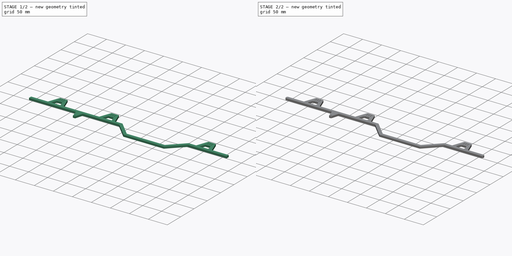
[diagram: build sequence overview — one tinted view per stage of 2, left to right]
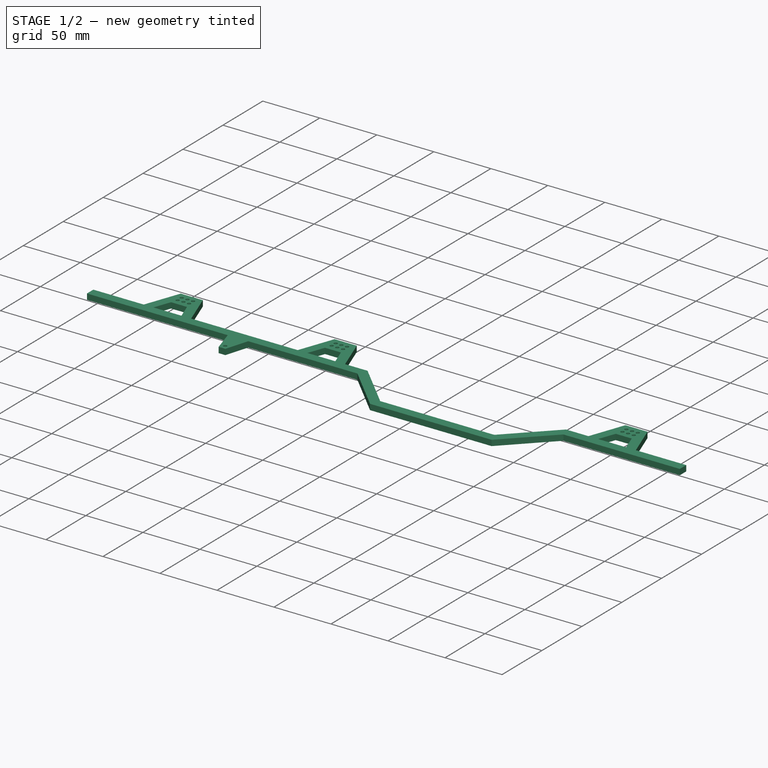
[diagram: stage 1 of 2 — iso view after this stage's code; geometry added in this stage tinted green]
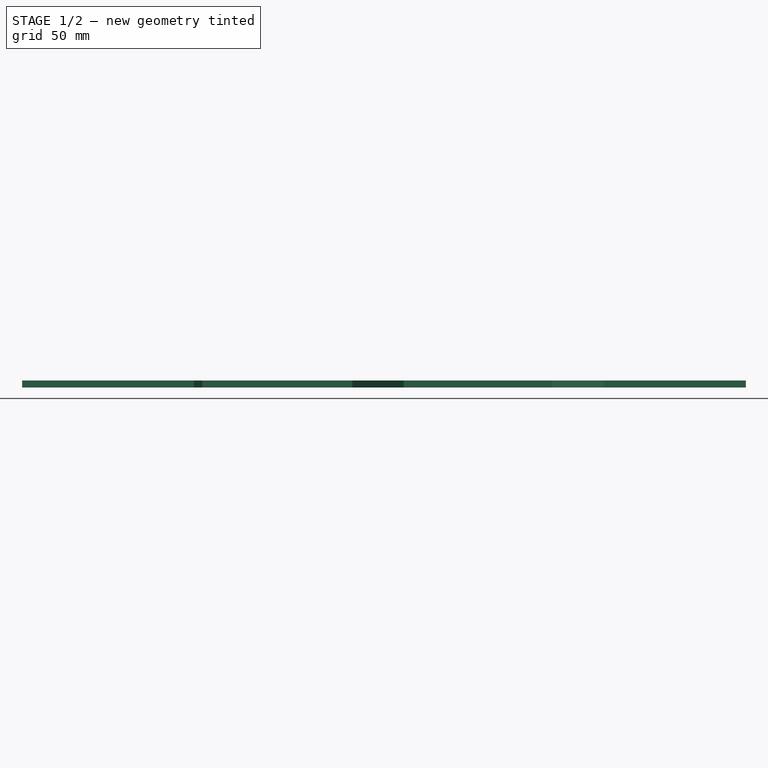
[diagram: stage 1 of 2 — front view after this stage's code; geometry added in this stage tinted green]
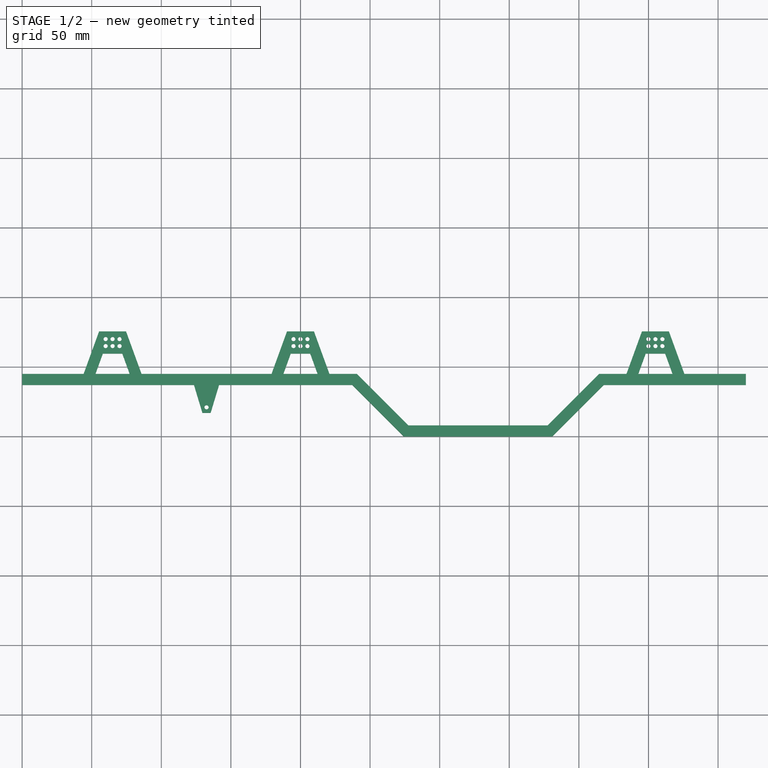
[diagram: stage 1 of 2 — top view after this stage's code; geometry added in this stage tinted green]
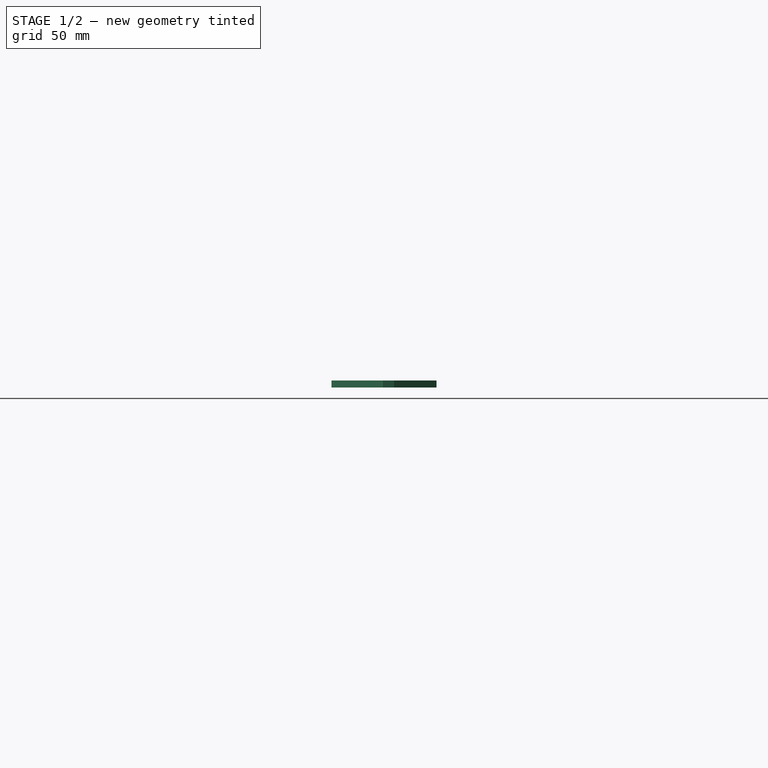
[diagram: stage 1 of 2 — right view after this stage's code; geometry added in this stage tinted green]
FCSTD DOCUMENT  (FreeCAD 0.16R6692 (Git))
Label: chassis
License: All rights reserved
LicenseURL: http://en.wikipedia.org/wiki/All_rights_reserved
objects: Sketcher::SketchObject×1, PartDesign::Pad×1, Part::Fillet×1
note: 4 computed .brp shape members not serialized (recipe doc carries the construction recipe); baked Part::Feature solids carry a one-line shape summary decoded from their .brp

FEATURE [Sketcher::SketchObject] Sketch
  sketch-geometry (104):
    g0: LineSegment StartX=0 StartY=45 StartZ=0 EndX=44.209 EndY=45 EndZ=0
    g1: LineSegment StartX=44.209 StartY=45 StartZ=0 EndX=55.3101 EndY=75.5 EndZ=0
    g2: LineSegment StartX=55.3101 StartY=75.5 StartZ=0 EndX=74.6899 EndY=75.5 EndZ=0
    g3: LineSegment StartX=74.6899 StartY=75.5 StartZ=0 EndX=85.791 EndY=45 EndZ=0
    g4: LineSegment StartX=85.791 StartY=45 StartZ=0 EndX=179.209 EndY=45 EndZ=0
    g5: LineSegment StartX=179.209 StartY=45 StartZ=0 EndX=190.31 EndY=75.5 EndZ=0
    g6: LineSegment StartX=190.31 StartY=75.5 StartZ=0 EndX=209.69 EndY=75.5 EndZ=0
    g7: LineSegment StartX=209.69 StartY=75.5 StartZ=0 EndX=220.791 EndY=45 EndZ=0
    g8: LineSegment StartX=220.791 StartY=45 StartZ=0 EndX=240.5 EndY=45 EndZ=0
    g9: LineSegment StartX=240.5 StartY=45 StartZ=0 EndX=277.5 EndY=8 EndZ=0
    g10: LineSegment StartX=277.5 StartY=8 StartZ=0 EndX=377.5 EndY=8 EndZ=0
    g11: LineSegment StartX=377.5 StartY=8 StartZ=0 EndX=414.5 EndY=45 EndZ=0
    g12: LineSegment StartX=414.5 StartY=45 StartZ=0 EndX=434.209 EndY=45 EndZ=0
    g13: LineSegment StartX=434.209 StartY=45 StartZ=0 EndX=445.31 EndY=75.5 EndZ=0
    g14: LineSegment StartX=445.31 StartY=75.5 StartZ=0 EndX=464.69 EndY=75.5 EndZ=0
    g15: LineSegment StartX=464.69 StartY=75.5 StartZ=0 EndX=475.791 EndY=45 EndZ=0
    g16: LineSegment StartX=475.791 StartY=45 StartZ=0 EndX=520 EndY=45 EndZ=0
    g17: LineSegment StartX=520 StartY=45 StartZ=0 EndX=520 EndY=37 EndZ=0
    g18: LineSegment StartX=520 StartY=37 StartZ=0 EndX=417.814 EndY=37 EndZ=0
    g19: LineSegment StartX=417.814 StartY=37 StartZ=0 EndX=380.814 EndY=0 EndZ=0
    g20: LineSegment StartX=380.814 StartY=0 StartZ=0 EndX=274.186 EndY=0 EndZ=0
    g21: LineSegment StartX=274.186 StartY=0 StartZ=0 EndX=237.186 EndY=37 EndZ=0
    g22: LineSegment StartX=237.186 StartY=37 StartZ=0 EndX=141.5 EndY=37 EndZ=0
    g23: LineSegment StartX=141.5 StartY=37 StartZ=0 EndX=135.472 EndY=17 EndZ=0
    g24: LineSegment StartX=135.472 StartY=17 StartZ=0 EndX=129.528 EndY=17 EndZ=0
    g25: LineSegment StartX=129.528 StartY=17 StartZ=0 EndX=123.5 EndY=37 EndZ=0
    g26: LineSegment StartX=123.5 StartY=37 StartZ=0 EndX=0 EndY=37 EndZ=0
    g27: LineSegment StartX=0 StartY=37 StartZ=0 EndX=0 EndY=45 EndZ=0
    g28: LineSegment [constr] StartX=240.5 StartY=45 StartZ=0 EndX=414.5 EndY=45 EndZ=0
    g29: LineSegment [constr] StartX=237.186 StartY=37 StartZ=0 EndX=417.814 EndY=37 EndZ=0
    g30: LineSegment [constr] StartX=123.5 StartY=37 StartZ=0 EndX=141.5 EndY=37 EndZ=0
    g31: LineSegment StartX=52.7224 StartY=45 StartZ=0 EndX=58 EndY=59.5 EndZ=0
    g32: LineSegment StartX=58 StartY=59.5 StartZ=0 EndX=72 EndY=59.5 EndZ=0
    g33: LineSegment StartX=72 StartY=59.5 StartZ=0 EndX=77.2776 EndY=45 EndZ=0
    g34: LineSegment StartX=77.2776 StartY=45 StartZ=0 EndX=52.7224 EndY=45 EndZ=0
    g35: LineSegment StartX=187.722 StartY=45 StartZ=0 EndX=193 EndY=59.5 EndZ=0
    g36: LineSegment StartX=193 StartY=59.5 StartZ=0 EndX=207 EndY=59.5 EndZ=0
    g37: LineSegment StartX=207 StartY=59.5 StartZ=0 EndX=212.278 EndY=45 EndZ=0
    g38: LineSegment StartX=212.278 StartY=45 StartZ=0 EndX=187.722 EndY=45 EndZ=0
    g39: LineSegment StartX=442.722 StartY=45 StartZ=0 EndX=448 EndY=59.5 EndZ=0
    g40: LineSegment StartX=448 StartY=59.5 StartZ=0 EndX=462 EndY=59.5 EndZ=0
    g41: LineSegment StartX=462 StartY=59.5 StartZ=0 EndX=467.278 EndY=45 EndZ=0
    g42: LineSegment StartX=467.278 StartY=45 StartZ=0 EndX=442.722 EndY=45 EndZ=0
    g43: LineSegment [constr] StartX=44.209 StartY=45 StartZ=0 EndX=52.7224 EndY=45 EndZ=0
    g44: LineSegment [constr] StartX=77.2776 StartY=45 StartZ=0 EndX=85.791 EndY=45 EndZ=0
    g45: LineSegment [constr] StartX=179.209 StartY=45 StartZ=0 EndX=187.722 EndY=45 EndZ=0
    g46: LineSegment [constr] StartX=212.278 StartY=45 StartZ=0 EndX=220.791 EndY=45 EndZ=0
    g47: LineSegment [constr] StartX=434.209 StartY=45 StartZ=0 EndX=442.722 EndY=45 EndZ=0
    g48: LineSegment [constr] StartX=467.278 StartY=45 StartZ=0 EndX=475.791 EndY=45 EndZ=0
    g49: LineSegment [constr] StartX=377.5 StartY=8 StartZ=0 EndX=377.5 EndY=0 EndZ=0
    g50: LineSegment [constr] StartX=277.5 StartY=8 StartZ=0 EndX=271.843 EndY=2.34315 EndZ=0
    g51: LineSegment [constr] StartX=377.5 StartY=8 StartZ=0 EndX=383.157 EndY=2.34315 EndZ=0
    g52: Circle CenterX=60 CenterY=70 CenterZ=0 NormalX=0 NormalY=0 NormalZ=1 Radius=1.5
    g53: Circle CenterX=65 CenterY=70 CenterZ=0 NormalX=0 NormalY=0 NormalZ=1 Radius=1.5
    g54: Circle CenterX=70 CenterY=70 CenterZ=0 NormalX=0 NormalY=0 NormalZ=1 Radius=1.5
    g55: Circle CenterX=60 CenterY=65 CenterZ=0 NormalX=0 NormalY=0 NormalZ=1 Radius=1.5
    g56: Circle CenterX=65 CenterY=65 CenterZ=0 NormalX=0 NormalY=0 NormalZ=1 Radius=1.5
    g57: Circle CenterX=70 CenterY=65 CenterZ=0 NormalX=0 NormalY=0 NormalZ=1 Radius=1.5
    g58: LineSegment [constr] StartX=60 StartY=70 StartZ=0 EndX=65 EndY=70 EndZ=0
    g59: LineSegment [constr] StartX=65 StartY=70 StartZ=0 EndX=70 EndY=70 EndZ=0
    g60: LineSegment [constr] StartX=60 StartY=70 StartZ=0 EndX=60 EndY=65 EndZ=0
    g61: LineSegment [constr] StartX=65 StartY=65 StartZ=0 EndX=60 EndY=65 EndZ=0
    g62: LineSegment [constr] StartX=65 StartY=65 StartZ=0 EndX=70 EndY=65 EndZ=0
    g63: Circle CenterX=195 CenterY=70 CenterZ=0 NormalX=0 NormalY=0 NormalZ=1 Radius=1.5
    g64: Circle CenterX=200 CenterY=70 CenterZ=0 NormalX=0 NormalY=0 NormalZ=1 Radius=1.5
    g65: Circle CenterX=205 CenterY=70 CenterZ=0 NormalX=0 NormalY=0 NormalZ=1 Radius=1.5
    g66: Circle CenterX=195 CenterY=65 CenterZ=0 NormalX=0 NormalY=0 NormalZ=1 Radius=1.5
    g67: Circle CenterX=200 CenterY=65 CenterZ=0 NormalX=0 NormalY=0 NormalZ=1 Radius=1.5
    g68: Circle CenterX=205 CenterY=65 CenterZ=0 NormalX=0 NormalY=0 NormalZ=1 Radius=1.5
    g69: LineSegment [constr] StartX=195 StartY=70 StartZ=0 EndX=200 EndY=70 EndZ=0
    g70: LineSegment [constr] StartX=200 StartY=70 StartZ=0 EndX=205 EndY=70 EndZ=0
    g71: LineSegment [constr] StartX=195 StartY=70 StartZ=0 EndX=195 EndY=65 EndZ=0
    g72: LineSegment [constr] StartX=200 StartY=65 StartZ=0 EndX=195 EndY=65 EndZ=0
    g73: LineSegment [constr] StartX=200 StartY=65 StartZ=0 EndX=205 EndY=65 EndZ=0
    g74: Circle CenterX=450 CenterY=70 CenterZ=0 NormalX=0 NormalY=0 NormalZ=1 Radius=1.5
    g75: Circle CenterX=455 CenterY=70 CenterZ=0 NormalX=0 NormalY=0 NormalZ=1 Radius=1.5
    g76: Circle CenterX=460 CenterY=70 CenterZ=0 NormalX=0 NormalY=0 NormalZ=1 Radius=1.5
    g77: Circle CenterX=450 CenterY=65 CenterZ=0 NormalX=0 NormalY=0 NormalZ=1 Radius=1.5
    g78: Circle CenterX=455 CenterY=65 CenterZ=0 NormalX=0 NormalY=0 NormalZ=1 Radius=1.5
    g79: Circle CenterX=460 CenterY=65 CenterZ=0 NormalX=0 NormalY=0 NormalZ=1 Radius=1.5
    g80: LineSegment [constr] StartX=450 StartY=70 StartZ=0 EndX=455 EndY=70 EndZ=0
    g81: LineSegment [constr] StartX=455 StartY=70 StartZ=0 EndX=460 EndY=70 EndZ=0
    g82: LineSegment [constr] StartX=450 StartY=70 StartZ=0 EndX=450 EndY=65 EndZ=0
    g83: LineSegment [constr] StartX=455 StartY=65 StartZ=0 EndX=450 EndY=65 EndZ=0
    g84: LineSegment [constr] StartX=455 StartY=65 StartZ=0 EndX=460 EndY=65 EndZ=0
    g85: LineSegment [constr] StartX=55.3101 StartY=75.5 StartZ=0 EndX=60 EndY=70 EndZ=0
    g86: LineSegment [constr] StartX=70 StartY=70 StartZ=0 EndX=74.6899 EndY=75.5 EndZ=0
    g87: LineSegment [constr] StartX=190.31 StartY=75.5 StartZ=0 EndX=195 EndY=70 EndZ=0
    g88: LineSegment [constr] StartX=205 StartY=70 StartZ=0 EndX=209.69 EndY=75.5 EndZ=0
    g89: LineSegment [constr] StartX=445.31 StartY=75.5 StartZ=0 EndX=450 EndY=70 EndZ=0
    g90: LineSegment [constr] StartX=460 StartY=70 StartZ=0 EndX=464.69 EndY=75.5 EndZ=0
    g91: LineSegment [constr] StartX=60 StartY=70 StartZ=0 EndX=60 EndY=75.5 EndZ=0
    g92: LineSegment [constr] StartX=60 StartY=65 StartZ=0 EndX=60 EndY=59.5 EndZ=0
    g93: LineSegment [constr] StartX=237.186 StartY=37 StartZ=0 EndX=277.5 EndY=8 EndZ=0
    g94: LineSegment [constr] StartX=377.5 StartY=8 StartZ=0 EndX=417.814 EndY=37 EndZ=0
    g95: LineSegment [constr] StartX=448 StartY=59.5 StartZ=0 EndX=440.482 EndY=62.2362 EndZ=0
    g96: Circle CenterX=132.5 CenterY=21 CenterZ=0 NormalX=0 NormalY=0 NormalZ=1 Radius=1.5
    g97: LineSegment [constr] StartX=132.5 StartY=21 StartZ=0 EndX=129.528 EndY=17 EndZ=0
    g98: LineSegment [constr] StartX=132.5 StartY=21 StartZ=0 EndX=135.472 EndY=17 EndZ=0
    g99: Circle [constr] CenterX=132.5 CenterY=21 CenterZ=0 NormalX=0 NormalY=0 NormalZ=1 Radius=4
    g100: LineSegment [constr] StartX=85.791 StartY=45 StartZ=0 EndX=132.5 EndY=21 EndZ=0
    g101: LineSegment [constr] StartX=132.5 StartY=21 StartZ=0 EndX=179.209 EndY=45 EndZ=0
    g102: LineSegment [constr] StartX=0 StartY=0 StartZ=0 EndX=0 EndY=37 EndZ=0
    g103: LineSegment [constr] StartX=0 StartY=0 StartZ=0 EndX=274.186 EndY=0 EndZ=0
  constraints (273):
    c: Horizontal(g0)
    c: Coincident(g0,g1)
    c: Coincident(g1,g2)
    c: Horizontal(g2)
    c: Coincident(g2,g3)
    c: Coincident(g3,g4)
    c: Horizontal(g4)
    c: Coincident(g4,g5)
    c: Coincident(g5,g6)
    c: Horizontal(g6)
    c: Coincident(g6,g7)
    c: Coincident(g7,g8)
    c: Horizontal(g8)
    c: Coincident(g8,g9)
    c: Coincident(g9,g10)
    c: Horizontal(g10)
    c: Coincident(g10,g11)
    c: Coincident(g11,g12)
    c: Horizontal(g12)
    c: Coincident(g12,g13)
    c: Coincident(g13,g14)
    c: Horizontal(g14)
    c: Coincident(g14,g15)
    c: Coincident(g15,g16)
    c: Horizontal(g16)
    c: Coincident(g16,g17)
    c: Coincident(g17,g18)
    c: Horizontal(g18)
    c: Coincident(g18,g19)
    c: Coincident(g19,g20)
    c: Horizontal(g20)
    c: Coincident(g20,g21)
    c: Coincident(g21,g22)
    c: Horizontal(g22)
    c: Coincident(g22,g23)
    c: Coincident(g23,g24)
    c: Coincident(g24,g25)
    c: Coincident(g25,g26)
    c: Horizontal(g26)
    c: Coincident(g26,g27)
    c: Coincident(g27,g0)
    c: Vertical(g27)
    c: Horizontal(g24)
    c: Parallel(g11,g19)
    c: Parallel(g9,g21)
    c: Equal(g1,g3)
    c: Equal(g3,g5)
    c: Equal(g5,g7)
    c: Equal(g7,g13)
    c: Equal(g13,g15)
    c: Equal(g27,g17)
    c: Vertical(g17)
    c: Equal(g14,g6)
    c: Equal(g6,g2)
    c: Coincident(g28,g8)
    c: Coincident(g28,g11)
    c: Horizontal(g28)
    c: Coincident(g29,g21)
    c: Coincident(g29,g18)
    c: Horizontal(g29)
    c: Coincident(g30,g25)
    c: Coincident(g30,g22)
    c: Horizontal(g30)
    c: Equal(g25,g23)
    c: Distance(g27) = 8
    c: Coincident(g31,g32)
    c: Horizontal(g32)
    c: Coincident(g32,g33)
    c: Coincident(g33,g34)
    c: Coincident(g34,g31)
    c: Horizontal(g34)
    c: Coincident(g35,g36)
    c: Horizontal(g36)
    c: Coincident(g36,g37)
    c: Coincident(g37,g38)
    c: Coincident(g38,g35)
    c: Horizontal(g38)
    c: Coincident(g39,g40)
    c: Horizontal(g40)
    c: Coincident(g40,g41)
    c: Coincident(g41,g42)
    c: Coincident(g42,g39)
    c: Horizontal(g42)
    c: Equal(g32,g36)
    c: Equal(g36,g40)
    c: Equal(g42,g38)
    c: Equal(g38,g34)
    c: Equal(g31,g33)
    c: Equal(g33,g35)
    c: Equal(g35,g37)
    c: Equal(g37,g39)
    c: Equal(g39,g41)
    c: Coincident(g43,g0)
    c: Coincident(g43,g31)
    c: Coincident(g44,g3)
    c: Coincident(g45,g4)
    c: Coincident(g45,g35)
    c: Coincident(g46,g37)
    c: Coincident(g46,g7)
    c: Coincident(g47,g12)
    c: Coincident(g47,g39)
    c: Coincident(g48,g41)
    c: Coincident(g48,g15)
    c: Coincident(g44,g33)
    c: Horizontal(g43)
    c: Horizontal(g45)
    c: Horizontal(g47)
    c: Equal(g48,g47)
    c: Equal(g47,g46)
    c: Equal(g46,g45)
    c: Equal(g45,g44)
    c: Equal(g44,g43)
    c: Parallel(g1,g31)
    c: Parallel(g5,g35)
    c: Parallel(g13,g39)
    c: DistanceY(g19,g16) = 45
    c: Coincident(g49,g10)
    c: PointOnObject(g49,g20)
    c: Vertical(g49)
    c: Equal(g49,g17)
    c: Coincident(g50,g9)
    c: PointOnObject(g50,g21)
    c: Coincident(g51,g10)
    c: PointOnObject(g51,g19)
    c: Perpendicular(g21,g50)
    c: Perpendicular(g19,g51)
    c: Equal(g50,g51)
    c: Equal(g51,g49)
    c: Coincident(g58,g52)
    c: Coincident(g58,g53)
    c: Coincident(g59,g53)
    c: Coincident(g59,g54)
    c: Coincident(g60,g52)
    c: Coincident(g60,g55)
    c: Vertical(g60)
    c: Coincident(g61,g56)
    c: Coincident(g61,g55)
    c: Horizontal(g61)
    c: Coincident(g62,g56)
    c: Coincident(g62,g57)
    c: Horizontal(g62)
    c: Horizontal(g58)
    c: Horizontal(g59)
    c: Radius(g52) = 1.5
    c: Equal(g52,g55)
    c: Equal(g52,g53)
    c: Equal(g52,g56)
    c: Equal(g52,g54)
    c: Equal(g52,g57)
    c: Equal(g59,g58)
    c: Equal(g58,g60)
    c: Equal(g60,g61)
    c: Equal(g61,g62)
    c: Distance(g59) = 5
    c: Coincident(g69,g63)
    c: Coincident(g69,g64)
    c: Coincident(g70,g64)
    c: Coincident(g70,g65)
    c: Coincident(g71,g63)
    c: Coincident(g71,g66)
    c: Vertical(g71)
    c: Coincident(g72,g67)
    c: Coincident(g72,g66)
    c: Horizontal(g72)
    c: Coincident(g73,g67)
    c: Coincident(g73,g68)
    c: Horizontal(g73)
    c: Horizontal(g69)
    c: Horizontal(g70)
    c: Equal(g52,g63) = 1.5
    c: Equal(g63,g66)
    c: Equal(g63,g64)
    c: Equal(g63,g67)
    c: Equal(g63,g65)
    c: Equal(g63,g68)
    c: Equal(g70,g69)
    c: Equal(g69,g71)
    c: Equal(g71,g72)
    c: Equal(g72,g73)
    c: Equal(g59,g70) = 5
    c: Coincident(g80,g74)
    c: Coincident(g80,g75)
    c: Coincident(g81,g75)
    c: Coincident(g81,g76)
    c: Coincident(g82,g74)
    c: Coincident(g82,g77)
    c: Vertical(g82)
    c: Coincident(g83,g78)
    c: Coincident(g83,g77)
    c: Horizontal(g83)
    c: Coincident(g84,g78)
    c: Coincident(g84,g79)
    c: Horizontal(g84)
    c: Horizontal(g80)
    c: Horizontal(g81)
    c: Equal(g74,g77)
    c: Equal(g74,g75)
    c: Equal(g74,g78)
    c: Equal(g74,g76)
    c: Equal(g74,g79)
    c: Equal(g81,g80)
    c: Equal(g80,g82)
    c: Equal(g82,g83)
    c: Equal(g83,g84)
    c: Coincident(g85,g1)
    c: Coincident(g85,g52)
    c: Coincident(g86,g54)
    c: Coincident(g86,g2)
    c: Coincident(g87,g5)
    c: Coincident(g87,g63)
    c: Coincident(g88,g65)
    c: Coincident(g88,g6)
    c: Coincident(g89,g13)
    c: Coincident(g89,g74)
    c: Coincident(g90,g76)
    c: Coincident(g90,g14)
    c: Equal(g85,g86)
    c: Equal(g86,g87)
    c: Equal(g87,g88)
    c: Equal(g88,g90)
    c: Equal(g90,g89)
    c: DistanceX(g53,g64) = 135
    c: DistanceX(g0,g16) = 520
    c: Coincident(g91,g52)
    c: PointOnObject(g91,g2)
    c: Vertical(g91)
    c: Coincident(g92,g55)
    c: PointOnObject(g92,g32)
    c: Vertical(g92)
    c: Equal(g92,g91)
    c: DistanceY(g32,g2) = 16
    c: Coincident(g93,g21)
    c: Coincident(g93,g9)
    c: Coincident(g94,g10)
    c: Coincident(g94,g18)
    c: Equal(g93,g94)
    c: Equal(g83,g73)
    c: Distance(g10) = 100
    c: DistanceY(g0,g52) = 25
    c: Coincident(g95,g39)
    c: PointOnObject(g95,g13)
    c: Perpendicular(g95,g13)
    c: Distance(g95) = 8
    c: Distance(g40) = 14
    c: Angle(g8,g7) = 1.91986
    c: Equal(g0,g16)
    c: DistanceX(g0,g53) = 65
    c: Equal(g8,g12)
    c: Coincident(g97,g96)
    c: Coincident(g97,g24)
    c: Coincident(g98,g96)
    c: Coincident(g98,g23)
    c: Equal(g97,g98)
    c: Radius(g96) = 1.5
    c: Coincident(g99,g96)
    c: Tangent(g99,g25)
    c: Tangent(g99,g24)
    c: Radius(g99) = 4
    c: Distance(g30) = 18
    c: Coincident(g100,g3)
    c: Coincident(g100,g96)
    c: Coincident(g101,g96)
    c: Coincident(g101,g4)
    c: Equal(g100,g101)
    c: DistanceY(g23,g22) = 20
    c: Coincident(g102,g-1)
    c: Coincident(g102,g26)
    c: Coincident(g103,g-1)
    c: Coincident(g103,g20)
    c: Horizontal(g103)
    c: Vertical(g102)
    c: Angle(g8,g9) = 2.35619
    c: Equal(g77,g68)
FEATURE [PartDesign::Pad] Pad
  Length = 5
  Length2 = 100
  Sketch = -> Sketch
  Type = 0
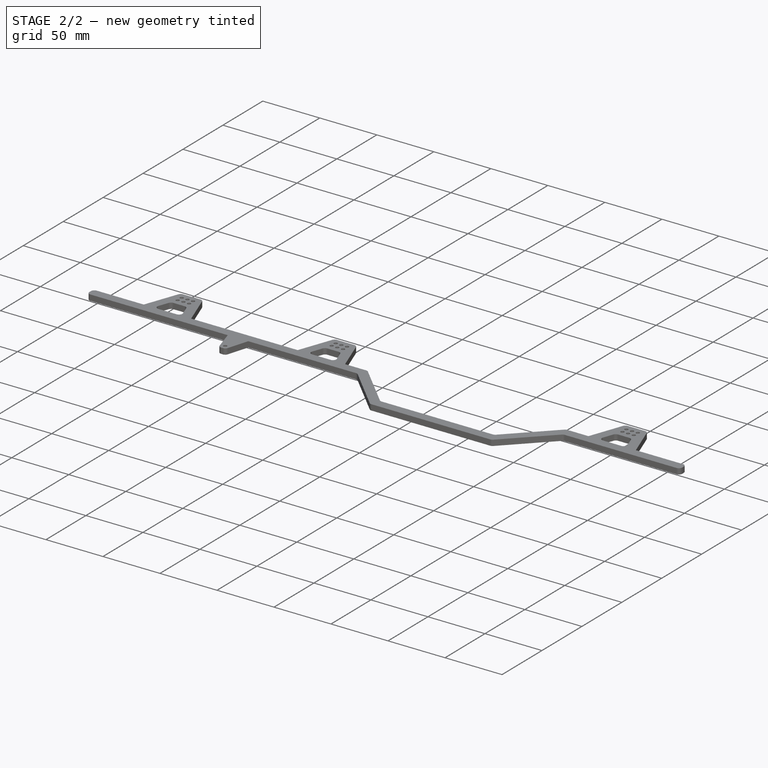
[diagram: stage 2 of 2 — iso view after this stage's code; geometry added in this stage tinted green]
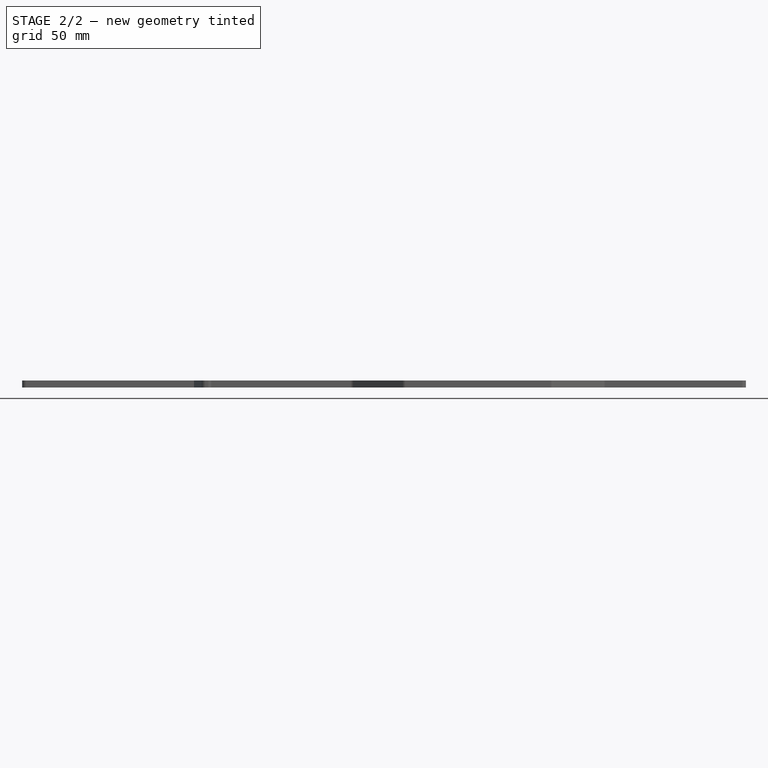
[diagram: stage 2 of 2 — front view after this stage's code; geometry added in this stage tinted green]
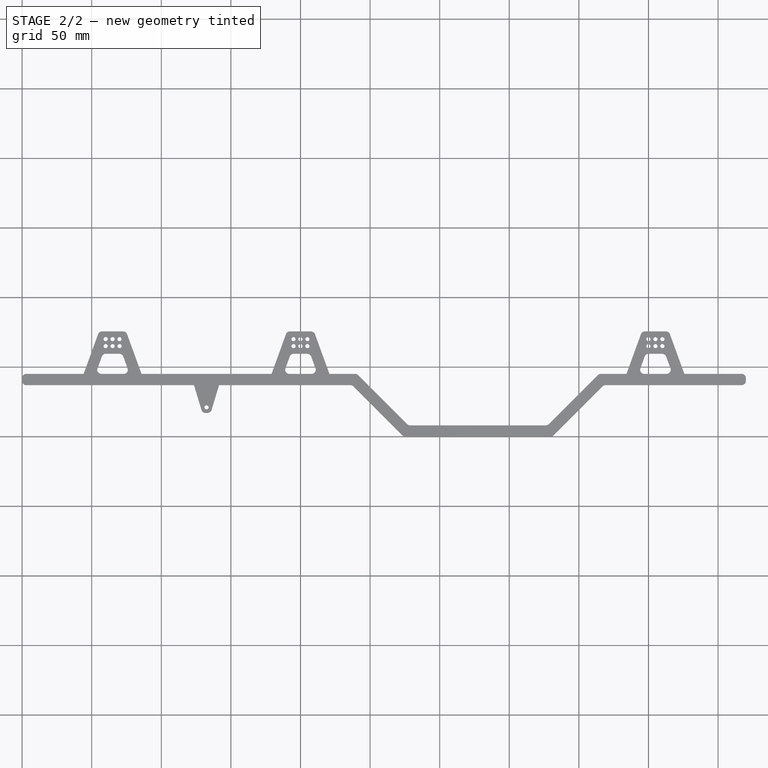
[diagram: stage 2 of 2 — top view after this stage's code; geometry added in this stage tinted green]
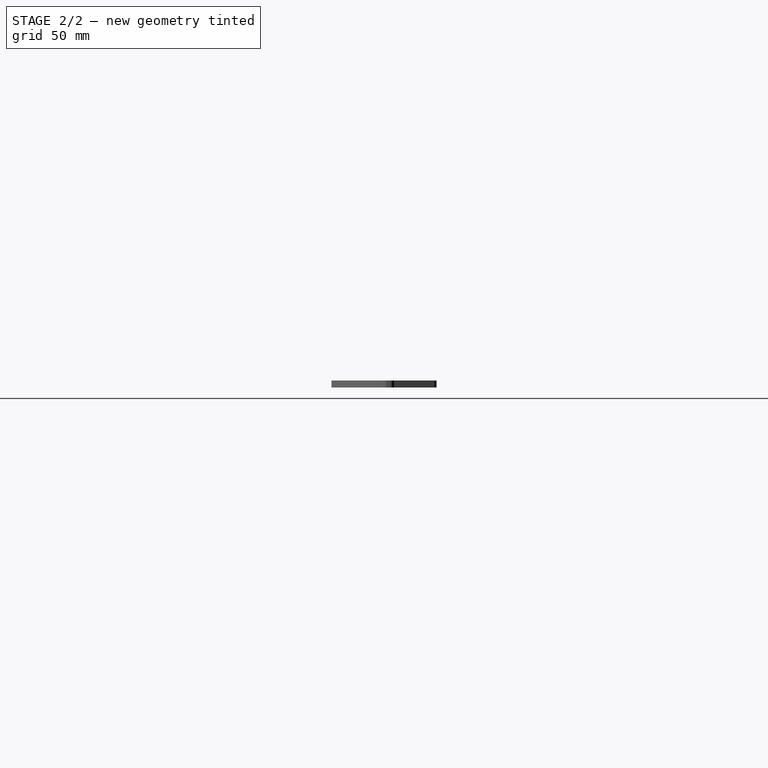
[diagram: stage 2 of 2 — right view after this stage's code; geometry added in this stage tinted green]
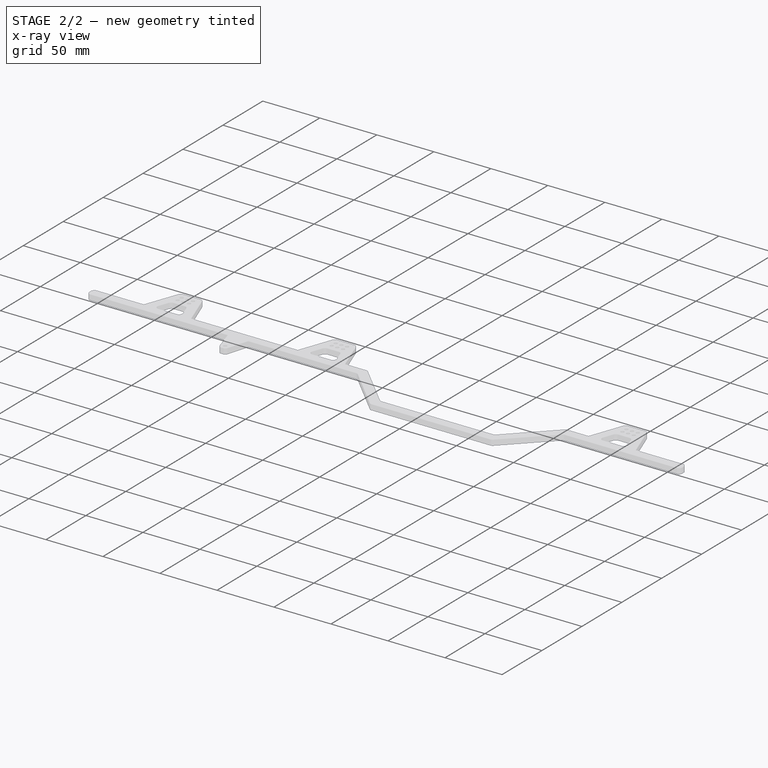
[diagram: stage 2 of 2 — x-ray composite at the iso view; earlier geometry ghosted, this stage's added geometry solid]
FEATURE [Part::Fillet] Fillet
  Base = -> Pad
  Edges = 32 edges r=3: [Edge1,Edge5,Edge8,Edge17,Edge20,Edge26,Edge29,Edge32,Edge35,Edge41,Edge44,Edge50,Edge53,Edge56,Edge59,Edge62,Edge65,Edge71,Edge74,Edge80,Edge85,Edge86,Edge89,Edge92,Edge97,Edge98,Edge101,Edge104,Edge109,Edge110,Edge113,Edge116]
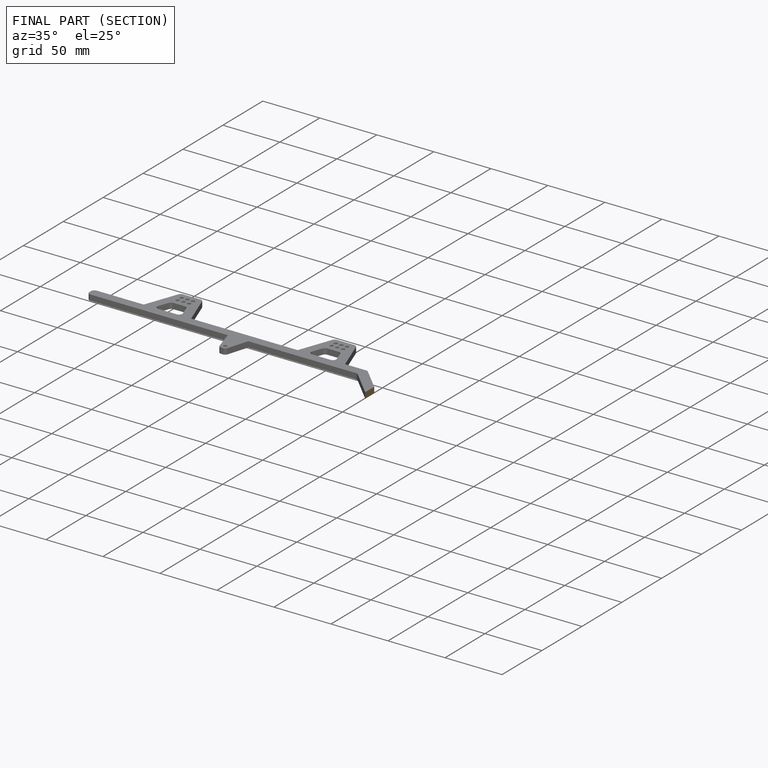
[diagram: finished part — half-section view (interior)]
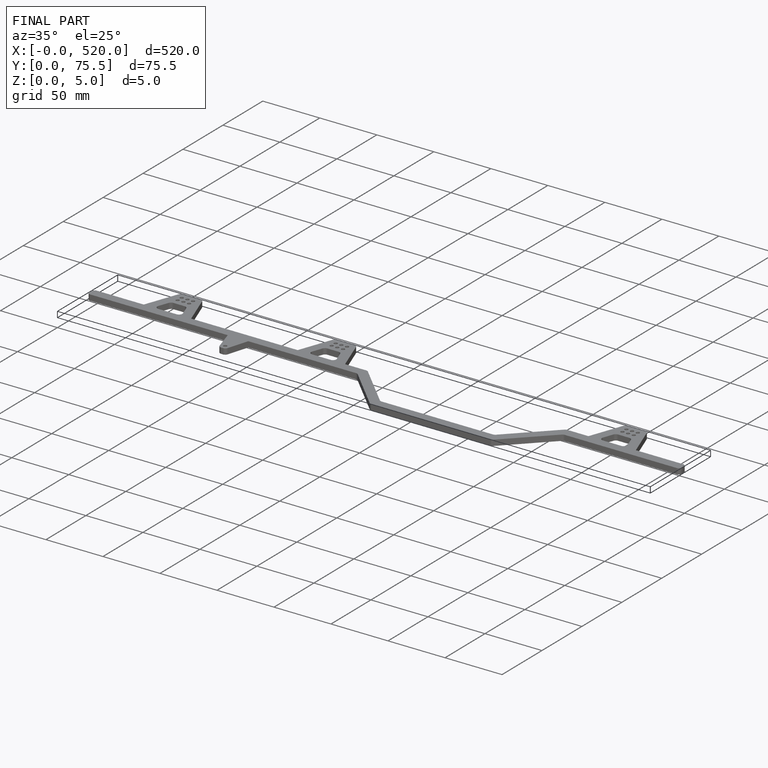
[diagram: finished part — iso view with bounding-box wireframe]
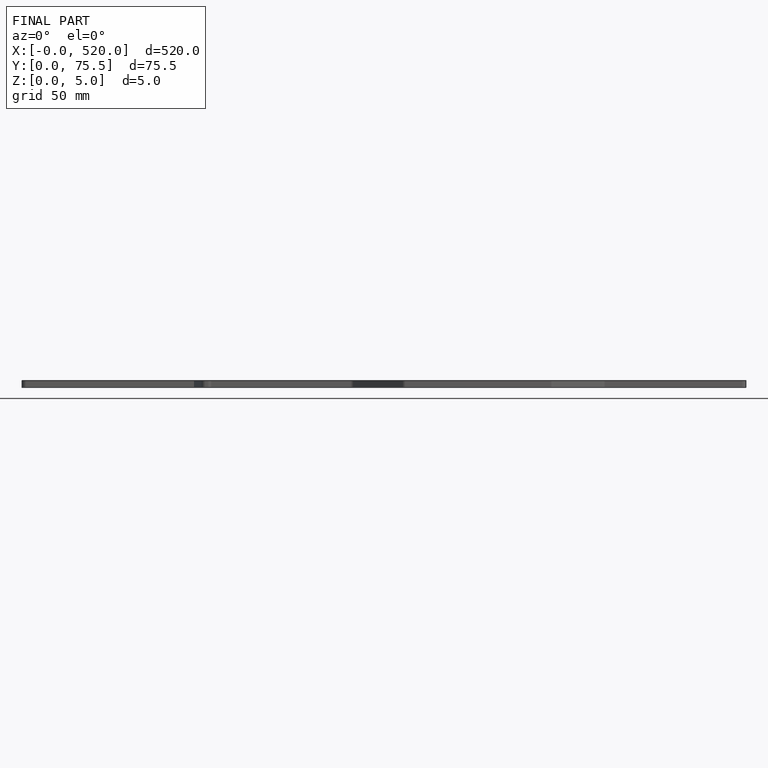
[diagram: finished part — front view with bounding-box wireframe]
